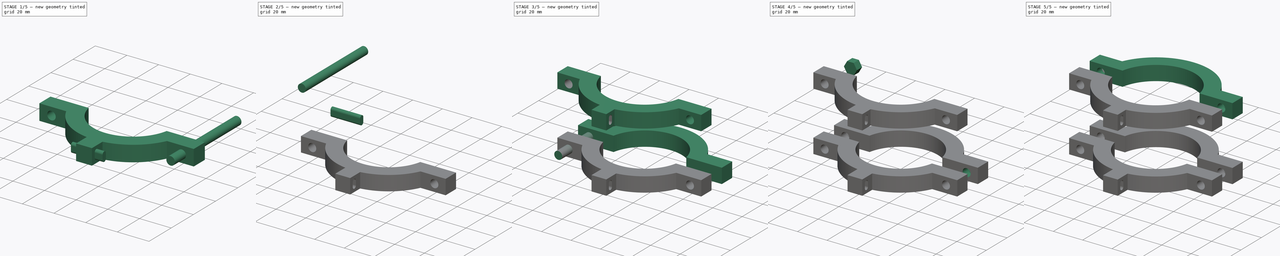
[diagram: build sequence overview — one tinted view per stage of 5, left to right]
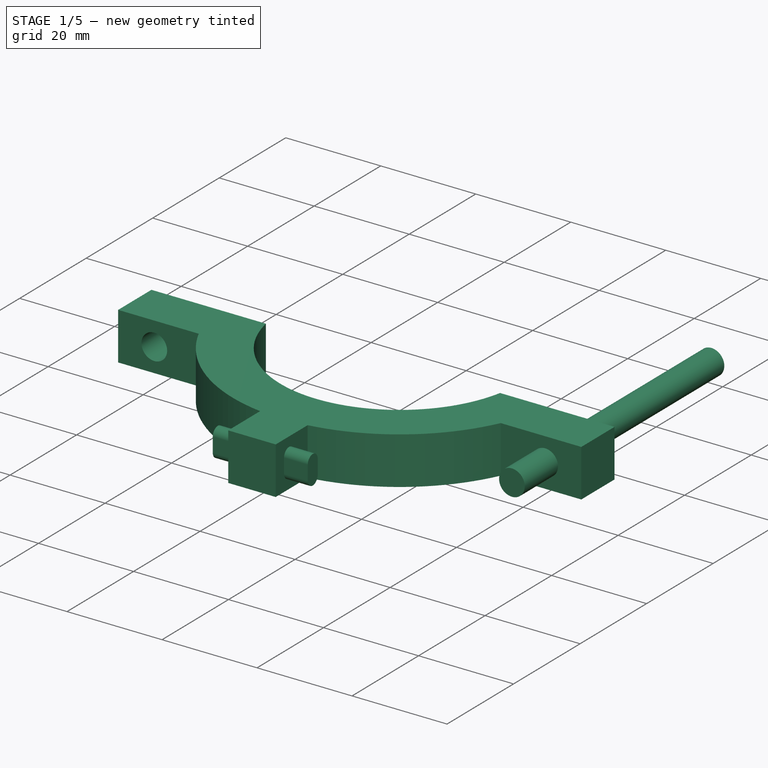
[diagram: stage 1 of 5 — iso view after this stage's code; geometry added in this stage tinted green]
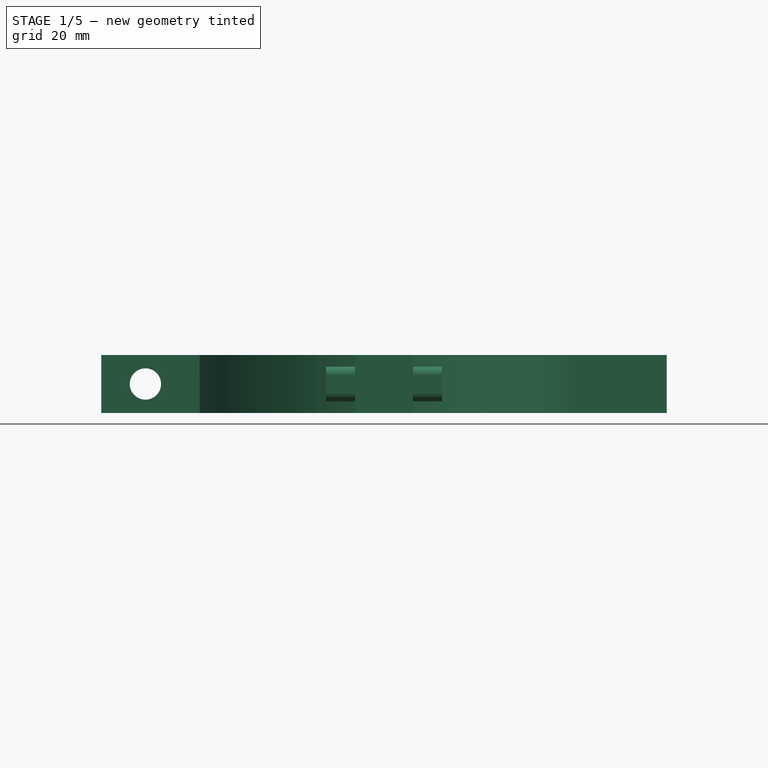
[diagram: stage 1 of 5 — front view after this stage's code; geometry added in this stage tinted green]
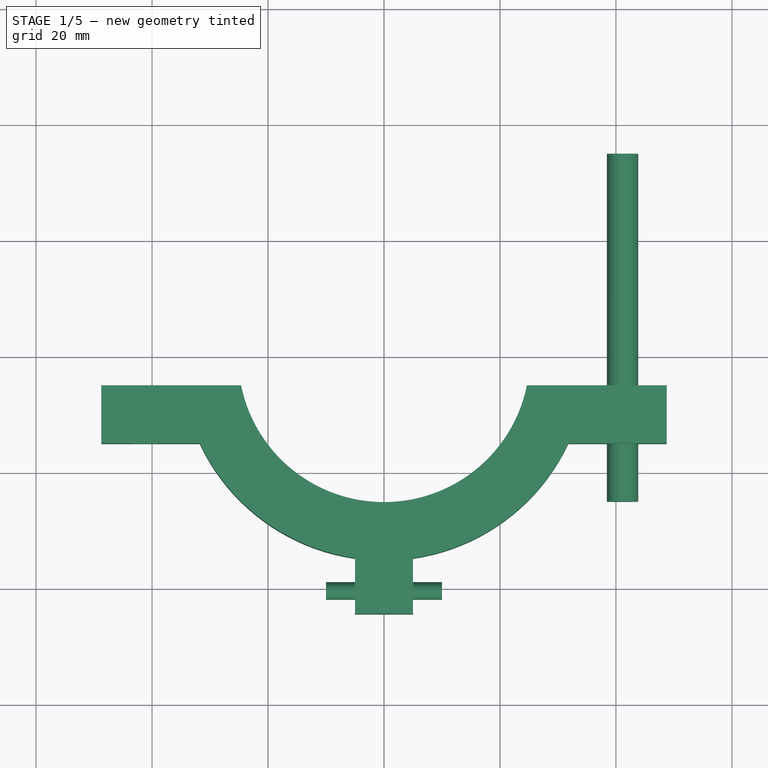
[diagram: stage 1 of 5 — top view after this stage's code; geometry added in this stage tinted green]
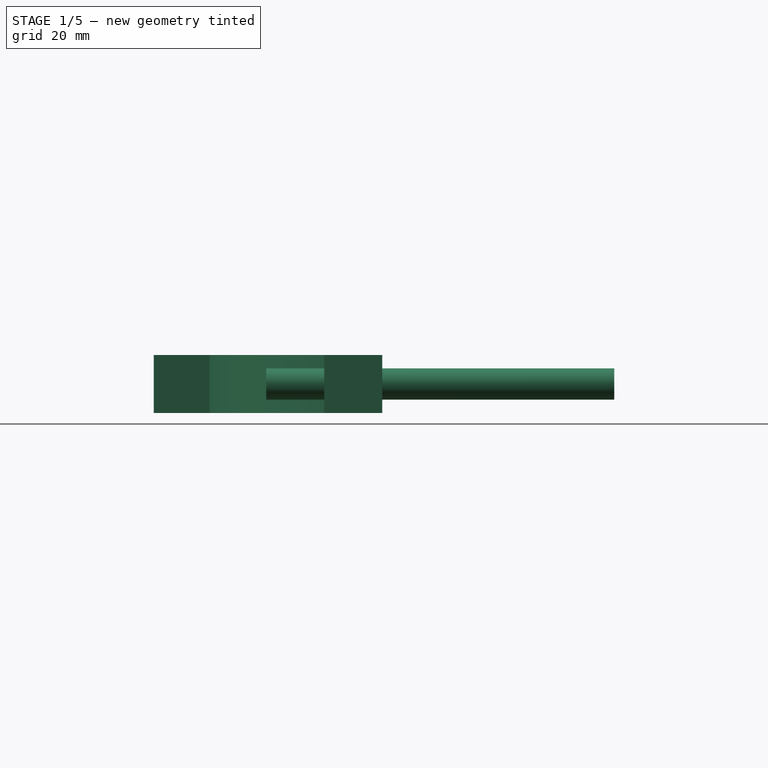
[diagram: stage 1 of 5 — right view after this stage's code; geometry added in this stage tinted green]
FCSTD DOCUMENT  (FreeCAD 0.15R4671 (Git))
Label: vacuum_holder
License: All rights reserved
LicenseURL: http://en.wikipedia.org/wiki/All_rights_reserved
objects: Part::Cut×14, Part::Cylinder×12, Sketcher::SketchObject×4, PartDesign::Pad×4, Part::RegularPolygon×4, Part::Extrusion×4, Part::Box×2, Part::MultiFuse×2, App::DocumentObjectGroup×2
note: 50 computed .brp shape members not serialized (recipe doc carries the construction recipe); baked Part::Feature solids carry a one-line shape summary decoded from their .brp

FEATURE [Sketcher::SketchObject] Sketch005  label="skt_fore_bottom_clamp"
  sketch-geometry (14):
    g0: ArcOfCircle CenterX=0 CenterY=0 CenterZ=0 NormalX=0 NormalY=0 NormalZ=1 Radius=25.15 StartAngle=3.34173 EndAngle=6.08304
    g1: ArcOfCircle CenterX=0 CenterY=0 CenterZ=0 NormalX=0 NormalY=0 NormalZ=1 Radius=35.15 StartAngle=3.58248 EndAngle=4.56966
    g2: LineSegment StartX=-5 StartY=-34.7926 StartZ=0 EndX=-5 EndY=-44.3926 EndZ=0
    g3: LineSegment StartX=-5 StartY=-44.3926 StartZ=0 EndX=5 EndY=-44.3926 EndZ=0
    g4: LineSegment StartX=5 StartY=-44.3926 StartZ=0 EndX=5 EndY=-34.7926 EndZ=0
    g5: ArcOfCircle CenterX=0 CenterY=0 CenterZ=0 NormalX=0 NormalY=0 NormalZ=1 Radius=35.15 StartAngle=4.85512 EndAngle=5.8423
    g6: LineSegment StartX=-24.648 StartY=-5 StartZ=0 EndX=-48.75 EndY=-5 EndZ=0
    g7: LineSegment StartX=-48.75 StartY=-5 StartZ=0 EndX=-48.75 EndY=-15 EndZ=0
    g8: LineSegment StartX=-48.75 StartY=-15 StartZ=0 EndX=-31.7887 EndY=-15 EndZ=0
    g9: LineSegment [constr] StartX=-24.648 StartY=-5 StartZ=0 EndX=-24.648 EndY=0 EndZ=0
    g10: LineSegment StartX=48.75 StartY=-5 StartZ=0 EndX=24.648 EndY=-5 EndZ=0
    g11: LineSegment StartX=48.75 StartY=-5 StartZ=0 EndX=48.75 EndY=-15 EndZ=0
    g12: LineSegment StartX=48.75 StartY=-15 StartZ=0 EndX=31.7887 EndY=-15 EndZ=0
    g13: LineSegment [constr] StartX=24.648 StartY=-5 StartZ=0 EndX=24.648 EndY=0 EndZ=0
  constraints (44):
    c: Coincident(g0,g-1)
    c: Coincident(g1,g-1)
    c: Radius(g0) = 25.15
    c: Vertical(g2)
    c: Coincident(g3,g2)
    c: Horizontal(g3)
    c: Coincident(g4,g3)
    c: Vertical(g4)
    c: DistanceX(g3) = 10
    c: Equal(g1,g5)
    c: Coincident(g1,g2)
    c: Coincident(g5,g4)
    c: Coincident(g1,g5)
    c: Symmetric(g1,g4,g-2)
    c: DistanceY(g2) = -9.6
    c: PointOnObject(g6,g0)
    c: Horizontal(g6)
    c: Coincident(g7,g6)
    c: Vertical(g7)
    c: Coincident(g8,g7)
    c: Horizontal(g8)
    c: Coincident(g1,g8)
    c: DistanceY(g7) = -10
    c: Radius(g1) = 35.15
    c: Coincident(g0,g6)
    c: Coincident(g9,g0)
    c: PointOnObject(g9,g-1)
    c: Vertical(g9)
    c: DistanceY(g9) = 5
    c: DistanceX(g-1,g6) = -48.75
    c: Horizontal(g10)
    c: Vertical(g11)
    c: Coincident(g12,g11)
    c: Horizontal(g12)
    c: Coincident(g0,g10)
    c: Coincident(g5,g12)
    c: Coincident(g13,g0)
    c: PointOnObject(g13,g-1)
    c: Vertical(g13)
    c: Equal(g13,g9)
    c: Coincident(g11,g10)
    c: Equal(g11,g7)
    c: Symmetric(g0,g0,g-2)
    c: Symmetric(g10,g6,g-2)
FEATURE [Sketcher::SketchObject] Sketch006  label="skt_rear_bottom_clamp"
  Placement = pos=(0,0,0) rot=(0,0,1;3.14159rad)
  sketch-geometry (10):
    g0: ArcOfCircle CenterX=0 CenterY=0 CenterZ=0 NormalX=0 NormalY=0 NormalZ=1 Radius=25.15 StartAngle=3.34173 EndAngle=6.08304
    g1: LineSegment StartX=-24.648 StartY=-5 StartZ=0 EndX=-48.75 EndY=-5 EndZ=0
    g2: LineSegment StartX=-48.75 StartY=-5 StartZ=0 EndX=-48.75 EndY=-15 EndZ=0
    g3: LineSegment StartX=-48.75 StartY=-15 StartZ=0 EndX=-31.7887 EndY=-15 EndZ=0
    g4: LineSegment [constr] StartX=-24.648 StartY=-5 StartZ=0 EndX=-24.648 EndY=0 EndZ=0
    g5: LineSegment StartX=48.75 StartY=-5 StartZ=0 EndX=24.648 EndY=-5 EndZ=0
    g6: LineSegment StartX=48.75 StartY=-5 StartZ=0 EndX=48.75 EndY=-15 EndZ=0
    g7: LineSegment StartX=48.75 StartY=-15 StartZ=0 EndX=31.7887 EndY=-15 EndZ=0
    g8: LineSegment [constr] StartX=24.648 StartY=-5 StartZ=0 EndX=24.648 EndY=0 EndZ=0
    g9: ArcOfCircle CenterX=0 CenterY=0 CenterZ=0 NormalX=0 NormalY=0 NormalZ=1 Radius=35.15 StartAngle=3.58248 EndAngle=5.8423
  constraints (32):
    c: Coincident(g0,g-1)
    c: Radius(g0) = 25.15
    c: PointOnObject(g1,g0)
    c: Horizontal(g1)
    c: Coincident(g2,g1)
    c: Vertical(g2)
    c: Coincident(g3,g2)
    c: Horizontal(g3)
    c: DistanceY(g2) = -10
    c: Coincident(g0,g1)
    c: Coincident(g4,g0)
    c: PointOnObject(g4,g-1)
    c: Vertical(g4)
    c: DistanceY(g4) = 5
    c: DistanceX(g-1,g1) = -48.75
    c: Horizontal(g5)
    c: Vertical(g6)
    c: Coincident(g7,g6)
    c: Horizontal(g7)
    c: Coincident(g0,g5)
    c: Coincident(g8,g0)
    c: PointOnObject(g8,g-1)
    c: Vertical(g8)
    c: Equal(g8,g4)
    c: Coincident(g6,g5)
    c: Equal(g6,g2)
    c: Symmetric(g0,g0,g-2)
    c: Symmetric(g5,g1,g-2)
    c: Coincident(g9,g-1)
    c: Coincident(g9,g7)
    c: Coincident(g9,g3)
    c: Radius(g9) = 35.15
FEATURE [PartDesign::Pad] Pad005  label="base_fore_bottom_clamp"
  Length = 10
  Length2 = 100
  Sketch = -> Sketch005
  Type = 0
FEATURE [Part::Cylinder] Cylinder001  label="cyl_bottom_left"
  Angle = 360
  Height = 60
  Placement = pos=(-41.1442,-25,5) rot=(-1,0,0;1.5708rad)
  Radius = 2.7
FEATURE [Part::Cylinder] Cylinder003  label="cyl_bottom_right"
  Angle = 360
  Height = 60
  Placement = pos=(41.1442,-25,5) rot=(-1,0,0;1.5708rad)
  Radius = 2.7
FEATURE [Part::Cut] Cut002  label="fore_bottom_clamp_left_hole"
  Base = -> Pad005
  Tool = -> Cylinder001
FEATURE [Part::Box] Box001  label="Cube001"
  Height = 20
  Length = 3
  Placement = pos=(-1.5,-1.5,0) rot=(0,0,1;0rad)
  Width = 3
FEATURE [Part::Cylinder] Cylinder010  label="Cylinder012"
  Angle = 360
  Height = 20
  Placement = pos=(0,-1.5,0) rot=(0,0,1;0rad)
  Radius = 1.5
FEATURE [Part::Cylinder] Cylinder011  label="Cylinder013"
  Angle = 360
  Height = 20
  Placement = pos=(0,1.5,0) rot=(0,0,1;0rad)
  Radius = 1.5
FEATURE [Part::MultiFuse] Fusion001  label="hueco_soporte001"
  Placement = pos=(-10,-40.3982,5) rot=(0.57735,0.57735,0.57735;2.0944rad)
  Shapes = -> [Cylinder011,Box001,Cylinder010]
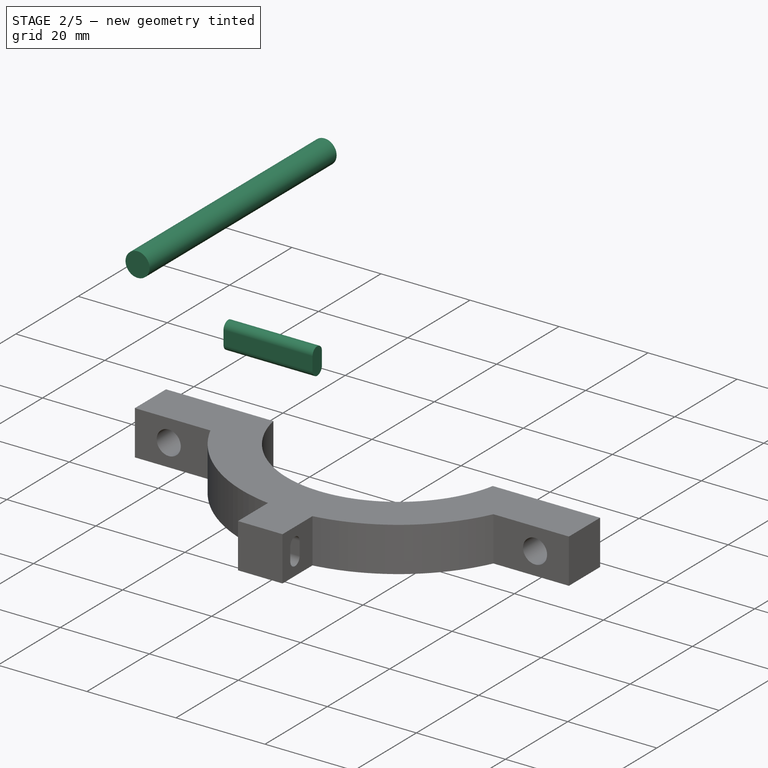
[diagram: stage 2 of 5 — iso view after this stage's code; geometry added in this stage tinted green]
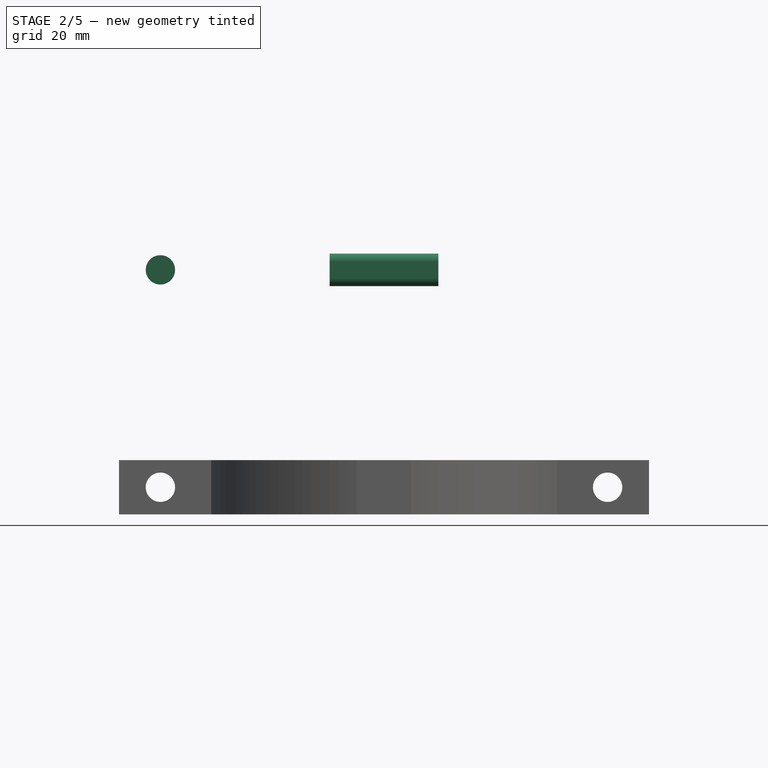
[diagram: stage 2 of 5 — front view after this stage's code; geometry added in this stage tinted green]
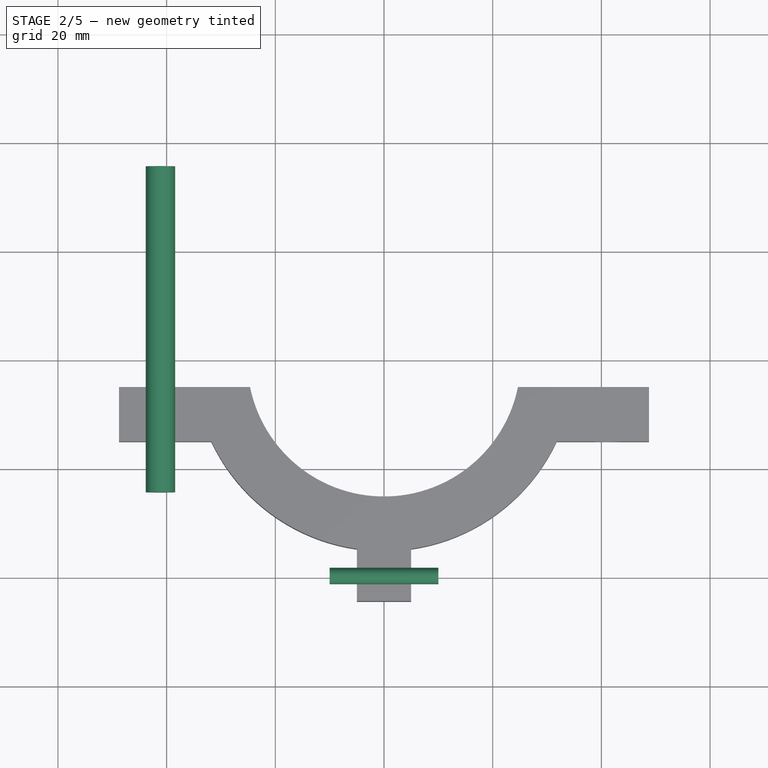
[diagram: stage 2 of 5 — top view after this stage's code; geometry added in this stage tinted green]
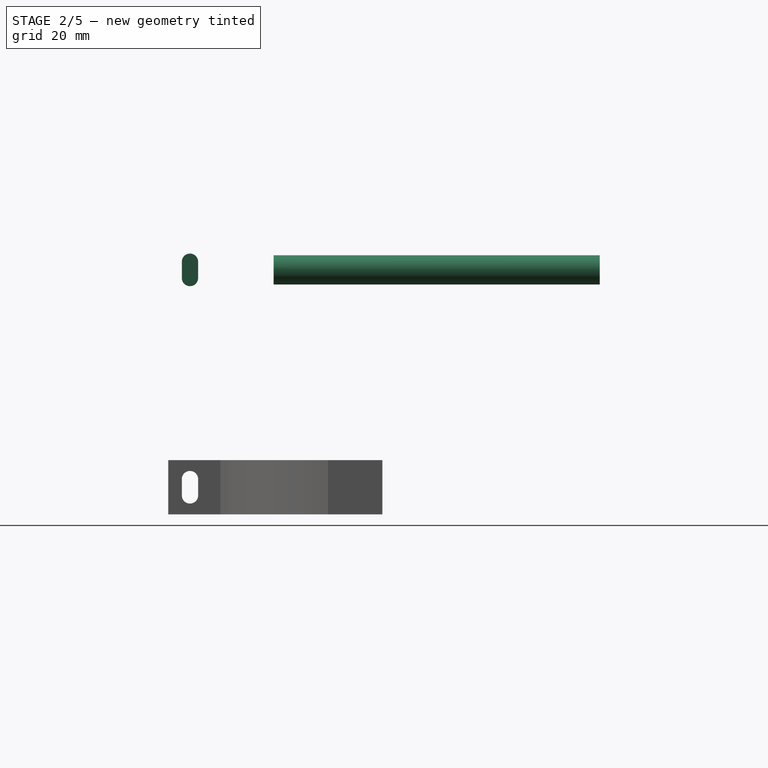
[diagram: stage 2 of 5 — right view after this stage's code; geometry added in this stage tinted green]
FEATURE [Part::Cylinder] Cylinder  label="cyl_top_left"
  Angle = 360
  Height = 60
  Placement = pos=(-41.1442,-25,45) rot=(-1,0,0;1.5708rad)
  Radius = 2.7
FEATURE [Part::Cut] Cut006  label="fore_bottom_clamp_side_holes"
  Base = -> Cut002
  Tool = -> Cylinder003
FEATURE [Part::Box] Box  label="Cube"
  Height = 20
  Length = 3
  Placement = pos=(-1.5,-1.5,0) rot=(0,0,1;0rad)
  Width = 3
FEATURE [Part::Cylinder] Cylinder008  label="Cylinder"
  Angle = 360
  Height = 20
  Placement = pos=(0,-1.5,0) rot=(0,0,1;0rad)
  Radius = 1.5
FEATURE [Part::Cylinder] Cylinder009  label="Cylinder001"
  Angle = 360
  Height = 20
  Placement = pos=(0,1.5,0) rot=(0,0,1;0rad)
  Radius = 1.5
FEATURE [Part::MultiFuse] Fusion  label="hueco_soporte"
  Placement = pos=(-10,-40.3982,45) rot=(0.57735,0.57735,0.57735;2.0944rad)
  Shapes = -> [Cylinder009,Box,Cylinder008]
FEATURE [App::DocumentObjectGroup] Group  label="top_clamp"
  Group = -> [Cut009,Cut012]
FEATURE [Part::Cut] Cut013  label="fore_bottom_clamp_all_holes"
  Base = -> Cut006
  Tool = -> Fusion001
FEATURE [App::DocumentObjectGroup] Group001  label="bottom_clamp"
  Group = -> [Cut011,Cut013]
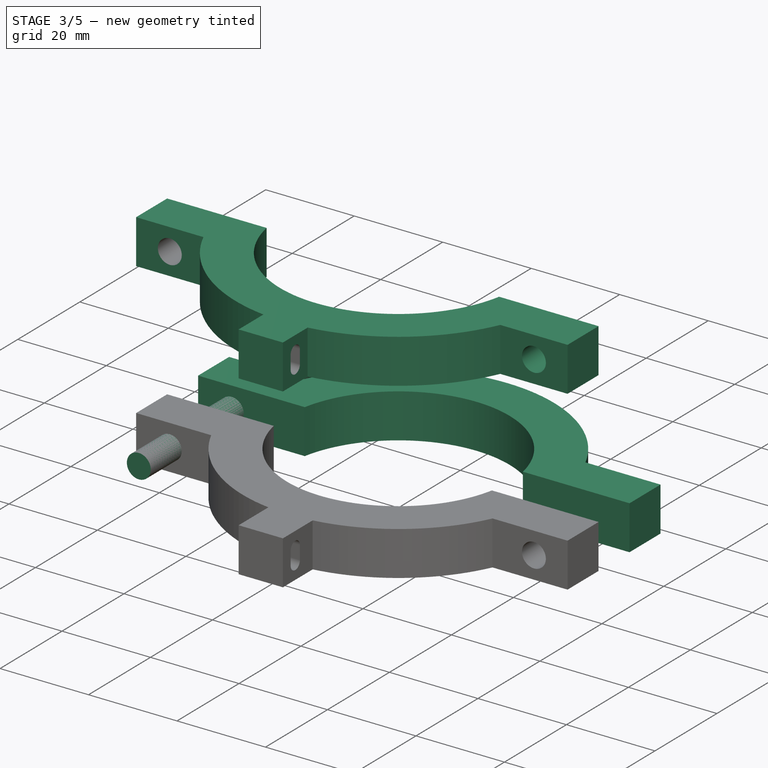
[diagram: stage 3 of 5 — iso view after this stage's code; geometry added in this stage tinted green]
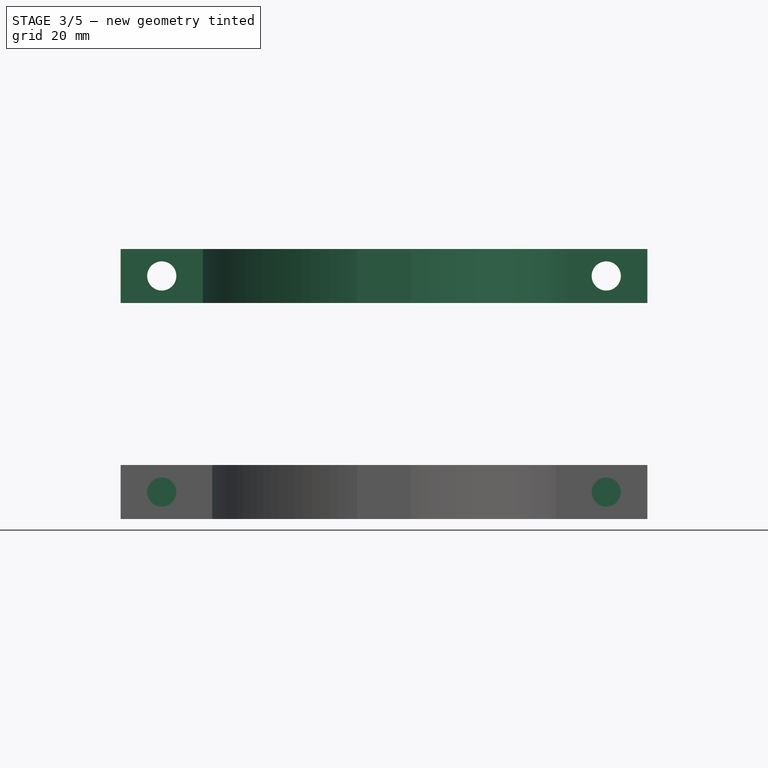
[diagram: stage 3 of 5 — front view after this stage's code; geometry added in this stage tinted green]
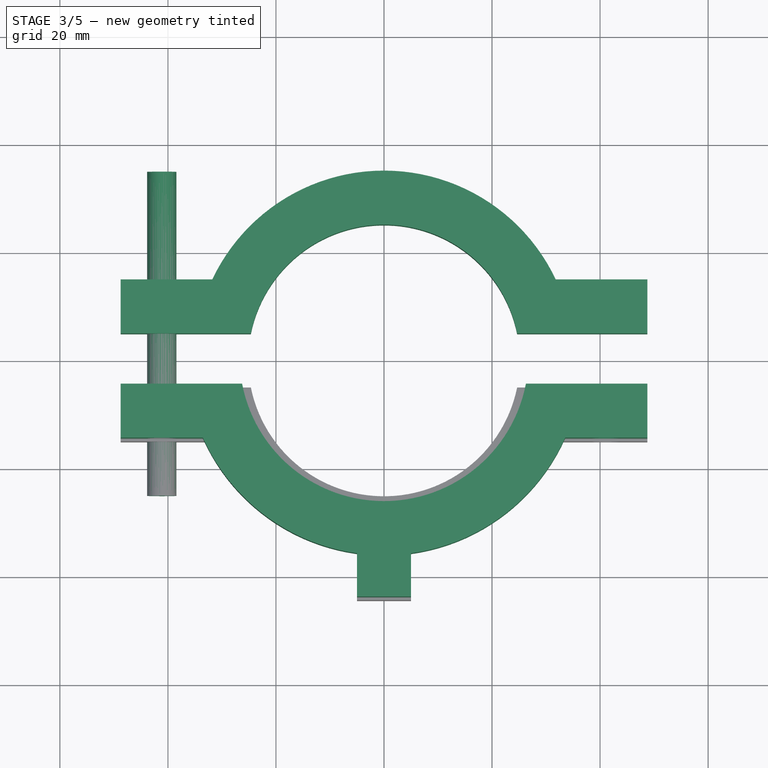
[diagram: stage 3 of 5 — top view after this stage's code; geometry added in this stage tinted green]
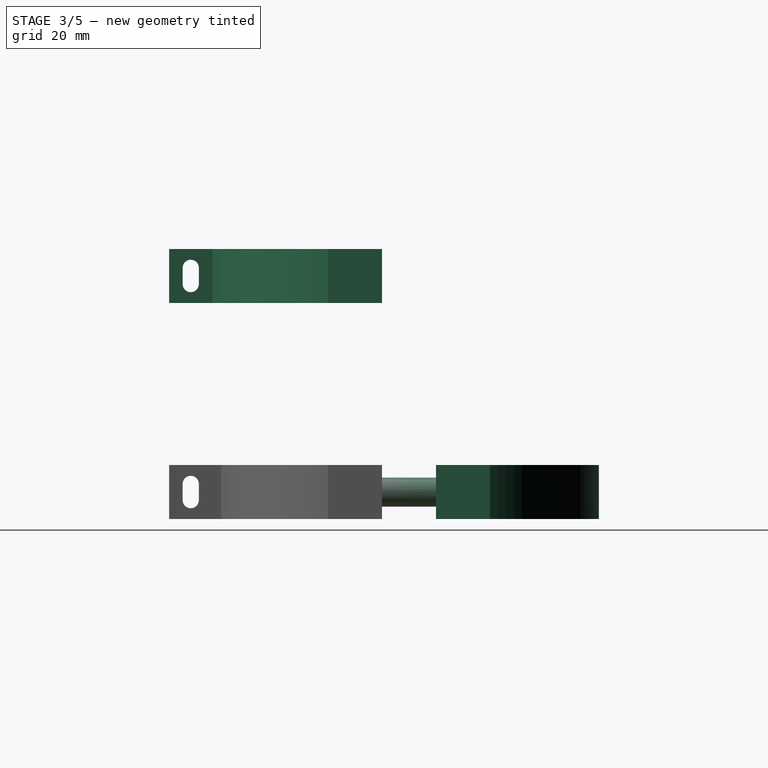
[diagram: stage 3 of 5 — right view after this stage's code; geometry added in this stage tinted green]
FEATURE [Sketcher::SketchObject] Sketch  label="skt_fore_top_clamp"
  Placement = pos=(0,0,40) rot=(0,0,1;0rad)
  sketch-geometry (14):
    g0: ArcOfCircle CenterX=0 CenterY=0 CenterZ=0 NormalX=0 NormalY=0 NormalZ=1 Radius=26.74 StartAngle=3.32969 EndAngle=6.09509
    g1: ArcOfCircle CenterX=0 CenterY=0 CenterZ=0 NormalX=0 NormalY=0 NormalZ=1 Radius=36.74 StartAngle=3.56216 EndAngle=4.57587
    g2: LineSegment StartX=-5 StartY=-36.3982 StartZ=0 EndX=-5 EndY=-44.3982 EndZ=0
    g3: LineSegment StartX=-5 StartY=-44.3982 StartZ=0 EndX=5 EndY=-44.3982 EndZ=0
    g4: LineSegment StartX=5 StartY=-44.3982 StartZ=0 EndX=5 EndY=-36.3982 EndZ=0
    g5: ArcOfCircle CenterX=0 CenterY=0 CenterZ=0 NormalX=0 NormalY=0 NormalZ=1 Radius=36.74 StartAngle=4.8489 EndAngle=5.86262
    g6: LineSegment StartX=-26.2684 StartY=-5 StartZ=0 EndX=-48.75 EndY=-5 EndZ=0
    g7: LineSegment StartX=-48.75 StartY=-5 StartZ=0 EndX=-48.75 EndY=-15 EndZ=0
    g8: LineSegment StartX=-48.75 StartY=-15 StartZ=0 EndX=-33.5384 EndY=-15 EndZ=0
    g9: LineSegment [constr] StartX=-26.2684 StartY=-5 StartZ=0 EndX=-26.2684 EndY=0 EndZ=0
    g10: LineSegment StartX=48.75 StartY=-5 StartZ=0 EndX=26.2684 EndY=-5 EndZ=0
    g11: LineSegment StartX=48.75 StartY=-5 StartZ=0 EndX=48.75 EndY=-15 EndZ=0
    g12: LineSegment StartX=48.75 StartY=-15 StartZ=0 EndX=33.5384 EndY=-15 EndZ=0
    g13: LineSegment [constr] StartX=26.2684 StartY=-5 StartZ=0 EndX=26.2684 EndY=0 EndZ=0
  constraints (44):
    c: Coincident(g0,g-1)
    c: Coincident(g1,g-1)
    c: Radius(g0) = 26.74
    c: Vertical(g2)
    c: Coincident(g3,g2)
    c: Horizontal(g3)
    c: Coincident(g4,g3)
    c: Vertical(g4)
    c: DistanceX(g3) = 10
    c: Equal(g1,g5)
    c: Coincident(g1,g2)
    c: Coincident(g5,g4)
    c: Coincident(g1,g5)
    c: Symmetric(g1,g4,g-2)
    c: DistanceY(g2) = -8
    c: PointOnObject(g6,g0)
    c: Horizontal(g6)
    c: Coincident(g7,g6)
    c: Vertical(g7)
    c: Coincident(g8,g7)
    c: Horizontal(g8)
    c: Coincident(g1,g8)
    c: DistanceY(g7) = -10
    c: Radius(g1) = 36.74
    c: Coincident(g0,g6)
    c: Coincident(g9,g0)
    c: PointOnObject(g9,g-1)
    c: Vertical(g9)
    c: DistanceY(g9) = 5
    c: DistanceX(g-1,g6) = -48.75
    c: Horizontal(g10)
    c: Vertical(g11)
    c: Coincident(g12,g11)
    c: Horizontal(g12)
    c: Coincident(g0,g10)
    c: Coincident(g5,g12)
    c: Coincident(g13,g0)
    c: PointOnObject(g13,g-1)
    c: Vertical(g13)
    c: Equal(g13,g9)
    c: Coincident(g11,g10)
    c: Equal(g11,g7)
    c: Symmetric(g0,g0,g-2)
    c: Symmetric(g10,g6,g-2)
FEATURE [PartDesign::Pad] Pad  label="base_fore_top_clamp"
  Length = 10
  Length2 = 100
  Placement = pos=(0,0,40) rot=(0,0,1;0rad)
  Sketch = -> Sketch
  Type = 0
FEATURE [PartDesign::Pad] Pad006  label="base_rear_bottom_clamp"
  Length = 10
  Length2 = 100
  Placement = pos=(0,0,0) rot=(0,0,1;3.14159rad)
  Sketch = -> Sketch006
  Type = 0
FEATURE [Part::Cylinder] Cylinder002  label="cyl_top_right"
  Angle = 360
  Height = 60
  Placement = pos=(41.1442,-25,45) rot=(-1,0,0;1.5708rad)
  Radius = 2.7
FEATURE [Part::Cylinder] Cylinder005  label="cyl_bottom_left001"
  Angle = 360
  Height = 60
  Placement = pos=(-41.1442,-25,5) rot=(-1,0,0;1.5708rad)
  Radius = 2.7
FEATURE [Part::Cut] Cut  label="fore_top_clamp_left_hole"
  Base = -> Pad
  Tool = -> Cylinder
FEATURE [Part::Cut] Cut004  label="fore_top_clamp_side_holes"
  Base = -> Cut
  Tool = -> Cylinder002
FEATURE [Part::RegularPolygon] RegularPolygon003  label="base_nut003"
  Circumradius = 4.42
  Polygon = 6
FEATURE [Part::Extrusion] Extrude003  label="bottom_left_nut"
  Base = -> RegularPolygon003
  Dir = (0,0,5)
  Placement = pos=(-41.1442,15,5) rot=(1,0,0;1.5708rad)
  Solid = true
FEATURE [Part::Cut] Cut012  label="fore_top_clamp_all_holes"
  Base = -> Cut004
  Tool = -> Fusion
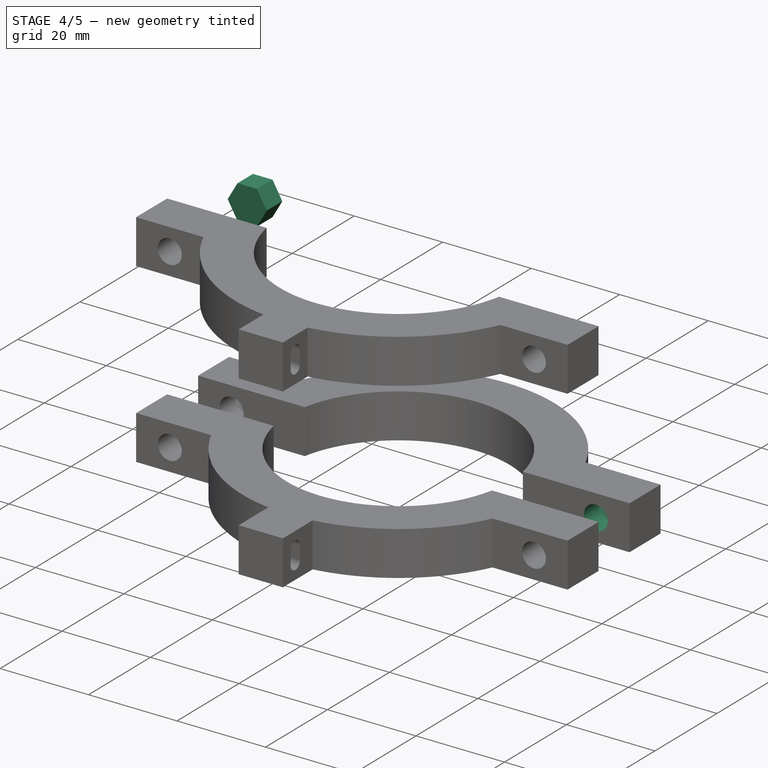
[diagram: stage 4 of 5 — iso view after this stage's code; geometry added in this stage tinted green]
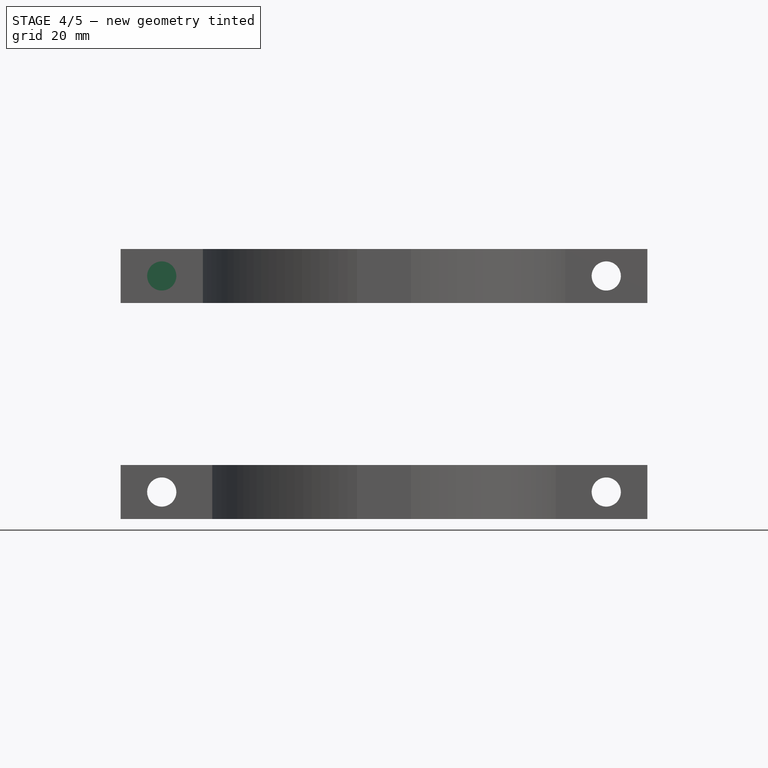
[diagram: stage 4 of 5 — front view after this stage's code; geometry added in this stage tinted green]
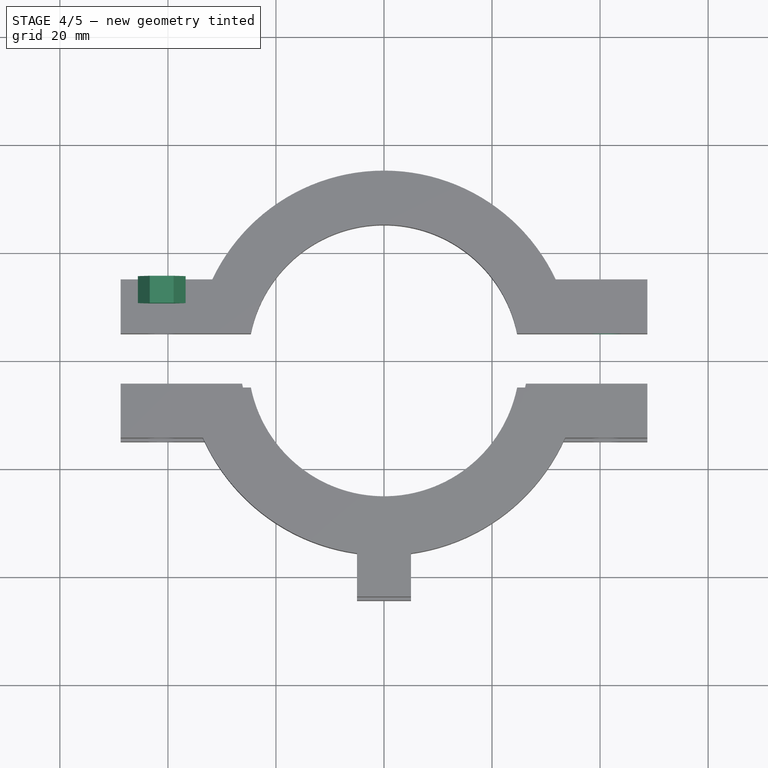
[diagram: stage 4 of 5 — top view after this stage's code; geometry added in this stage tinted green]
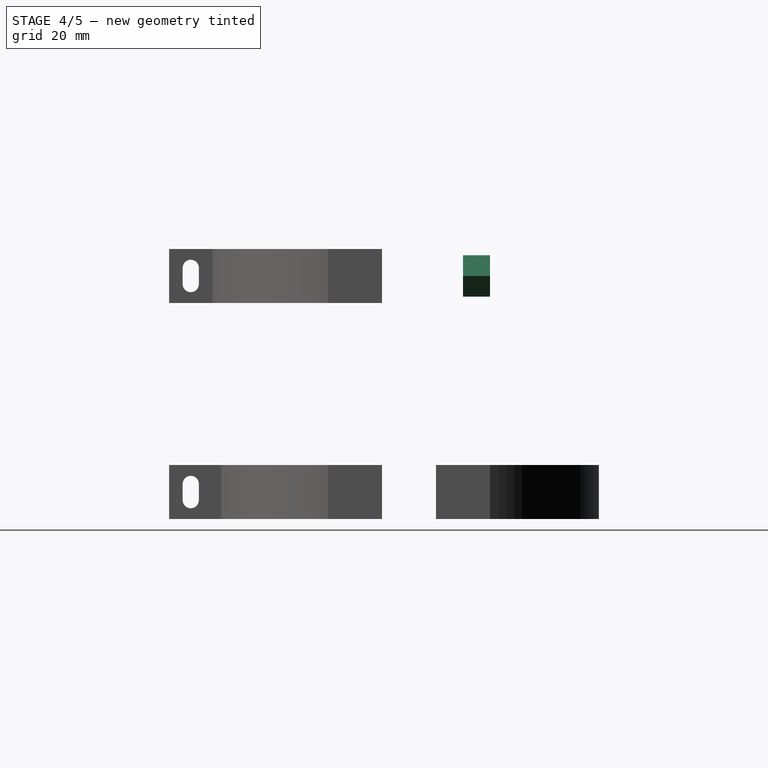
[diagram: stage 4 of 5 — right view after this stage's code; geometry added in this stage tinted green]
FEATURE [Part::Cylinder] Cylinder007  label="cyl_bottom_right001"
  Angle = 360
  Height = 60
  Placement = pos=(41.1442,-25,5) rot=(-1,0,0;1.5708rad)
  Radius = 2.7
FEATURE [Part::Cut] Cut003  label="fore_bottom_clamp_left_hole001"
  Base = -> Pad006
  Tool = -> Cylinder005
FEATURE [Part::Cut] Cut007  label="rear_bottom_clamp_side_holes"
  Base = -> Cut003
  Tool = -> Cylinder007
FEATURE [Part::RegularPolygon] RegularPolygon  label="base_nut"
  Circumradius = 4.42
  Polygon = 6
FEATURE [Part::Extrusion] Extrude  label="bottom_right_nut"
  Base = -> RegularPolygon
  Dir = (0,0,5)
  Placement = pos=(41.1442,15,5) rot=(1,0,0;1.5708rad)
  Solid = true
FEATURE [Part::RegularPolygon] RegularPolygon002  label="base_nut002"
  Circumradius = 4.42
  Polygon = 6
FEATURE [Part::Extrusion] Extrude002  label="top_left_nut"
  Base = -> RegularPolygon002
  Dir = (0,0,5)
  Placement = pos=(-41.1442,15,45) rot=(1,0,0;1.5708rad)
  Solid = true
FEATURE [Part::Cut] Cut010  label="rear_bottom_clamp_left_nut_hole"
  Base = -> Cut007
  Tool = -> Extrude003
FEATURE [Part::Cut] Cut011  label="rear_bottom_clamp_nut_holes"
  Base = -> Cut010
  Tool = -> Extrude
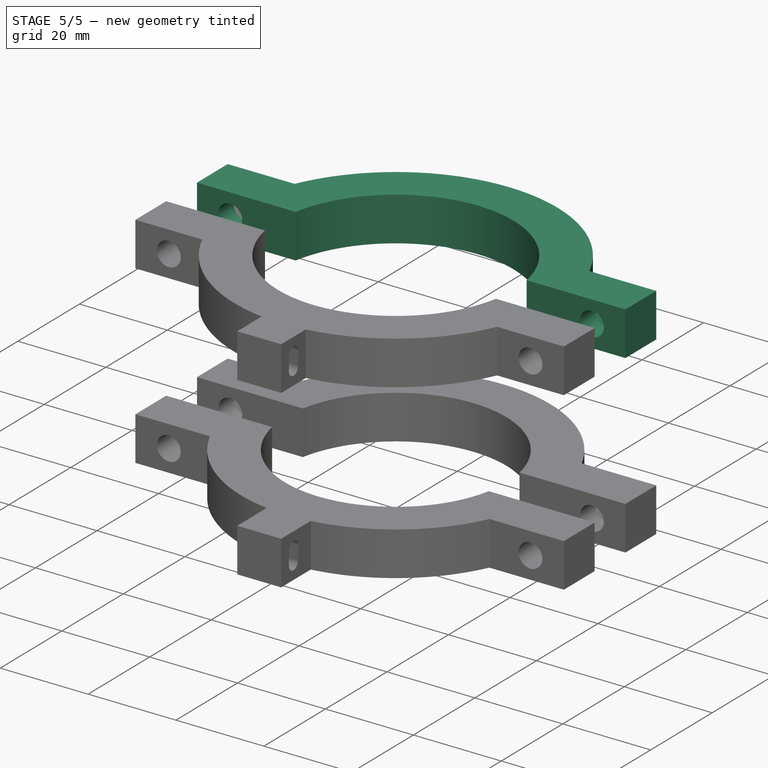
[diagram: stage 5 of 5 — iso view after this stage's code; geometry added in this stage tinted green]
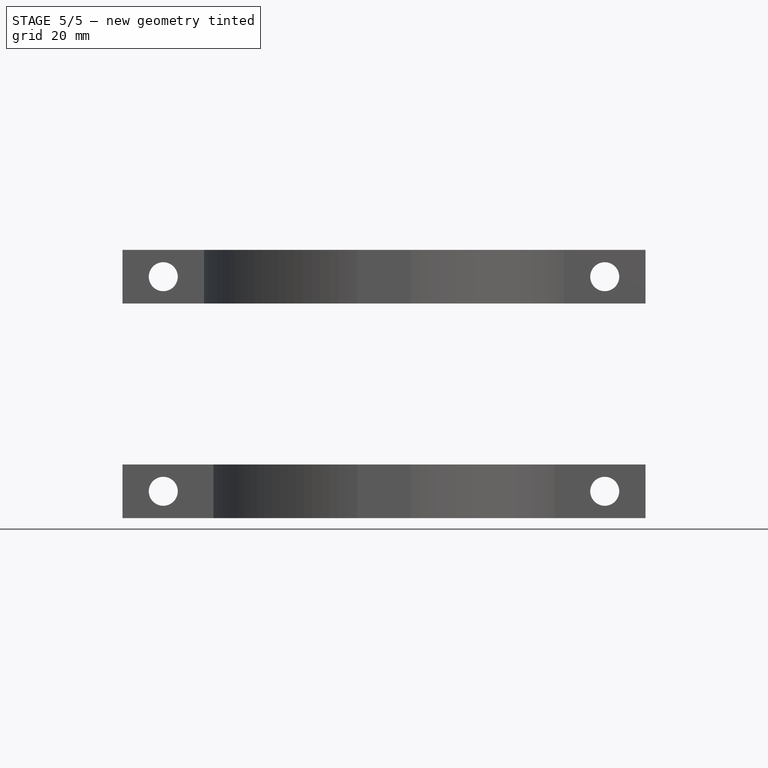
[diagram: stage 5 of 5 — front view after this stage's code; geometry added in this stage tinted green]
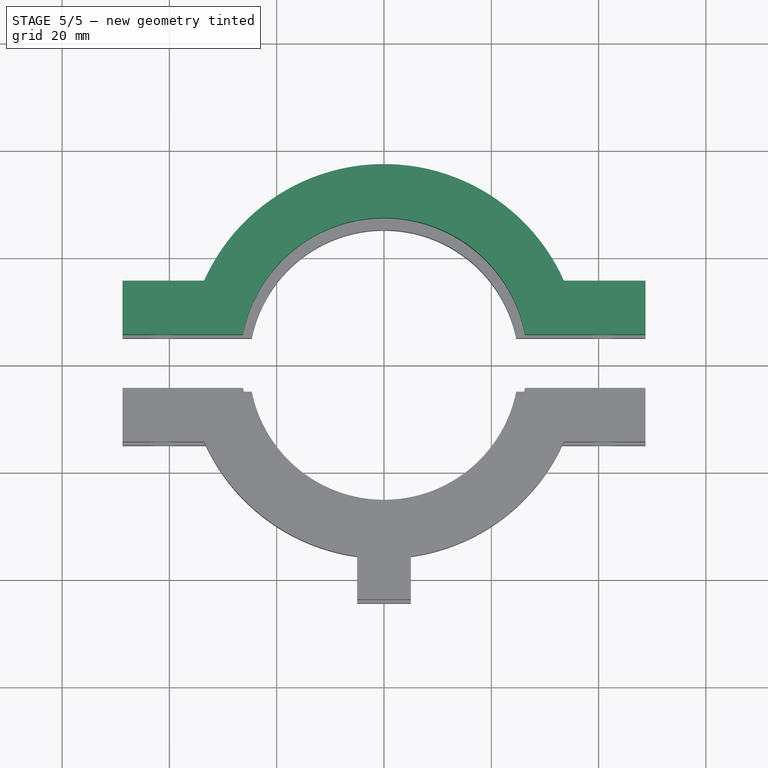
[diagram: stage 5 of 5 — top view after this stage's code; geometry added in this stage tinted green]
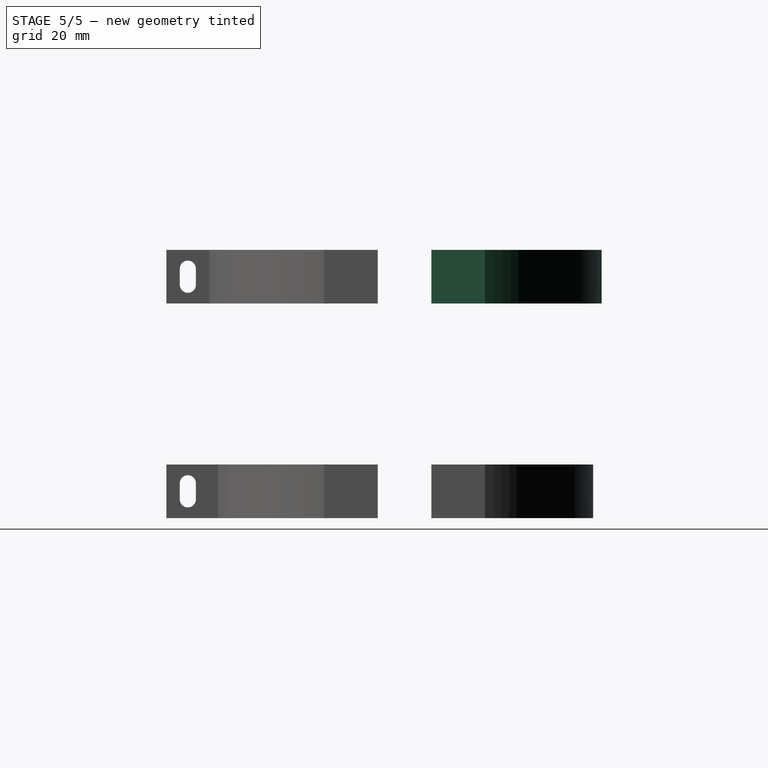
[diagram: stage 5 of 5 — right view after this stage's code; geometry added in this stage tinted green]
FEATURE [Sketcher::SketchObject] Sketch004  label="skt_rear_top_clamp"
  Placement = pos=(0,0,40) rot=(0,0,1;3.14159rad)
  sketch-geometry (10):
    g0: ArcOfCircle CenterX=0 CenterY=0 CenterZ=0 NormalX=0 NormalY=0 NormalZ=1 Radius=26.74 StartAngle=3.32969 EndAngle=6.09509
    g1: LineSegment StartX=-26.2684 StartY=-5 StartZ=0 EndX=-48.75 EndY=-5 EndZ=0
    g2: LineSegment StartX=-48.75 StartY=-5 StartZ=0 EndX=-48.75 EndY=-15 EndZ=0
    g3: LineSegment StartX=-48.75 StartY=-15 StartZ=0 EndX=-33.5384 EndY=-15 EndZ=0
    g4: LineSegment [constr] StartX=-26.2684 StartY=-5 StartZ=0 EndX=-26.2684 EndY=0 EndZ=0
    g5: LineSegment StartX=48.75 StartY=-5 StartZ=0 EndX=26.2684 EndY=-5 EndZ=0
    g6: LineSegment StartX=48.75 StartY=-5 StartZ=0 EndX=48.75 EndY=-15 EndZ=0
    g7: LineSegment StartX=48.75 StartY=-15 StartZ=0 EndX=33.5384 EndY=-15 EndZ=0
    g8: LineSegment [constr] StartX=26.2684 StartY=-5 StartZ=0 EndX=26.2684 EndY=0 EndZ=0
    g9: ArcOfCircle CenterX=0 CenterY=0 CenterZ=0 NormalX=0 NormalY=0 NormalZ=1 Radius=36.74 StartAngle=3.56216 EndAngle=5.86262
  constraints (32):
    c: Coincident(g0,g-1)
    c: Radius(g0) = 26.74
    c: PointOnObject(g1,g0)
    c: Horizontal(g1)
    c: Coincident(g2,g1)
    c: Vertical(g2)
    c: Coincident(g3,g2)
    c: Horizontal(g3)
    c: DistanceY(g2) = -10
    c: Coincident(g0,g1)
    c: Coincident(g4,g0)
    c: PointOnObject(g4,g-1)
    c: Vertical(g4)
    c: DistanceY(g4) = 5
    c: DistanceX(g-1,g1) = -48.75
    c: Horizontal(g5)
    c: Vertical(g6)
    c: Coincident(g7,g6)
    c: Horizontal(g7)
    c: Coincident(g0,g5)
    c: Coincident(g8,g0)
    c: PointOnObject(g8,g-1)
    c: Vertical(g8)
    c: Equal(g8,g4)
    c: Coincident(g6,g5)
    c: Equal(g6,g2)
    c: Symmetric(g0,g0,g-2)
    c: Symmetric(g5,g1,g-2)
    c: Coincident(g9,g-1)
    c: Coincident(g9,g7)
    c: Coincident(g9,g3)
    c: Radius(g9) = 36.74
FEATURE [PartDesign::Pad] Pad004  label="base_rear_top_clamp"
  Length = 10
  Length2 = 100
  Placement = pos=(0,0,40) rot=(0,0,1;3.14159rad)
  Sketch = -> Sketch004
  Type = 0
FEATURE [Part::Cylinder] Cylinder004  label="cyl_top_left001"
  Angle = 360
  Height = 60
  Placement = pos=(-41.1442,-25,45) rot=(-1,0,0;1.5708rad)
  Radius = 2.7
FEATURE [Part::Cylinder] Cylinder006  label="cyl_top_right001"
  Angle = 360
  Height = 60
  Placement = pos=(41.1442,-25,45) rot=(-1,0,0;1.5708rad)
  Radius = 2.7
FEATURE [Part::Cut] Cut001  label="rear_top_clamp_left_hole"
  Base = -> Pad004
  Tool = -> Cylinder004
FEATURE [Part::Cut] Cut005  label="rear_top_clamp_side_holes"
  Base = -> Cut001
  Tool = -> Cylinder006
FEATURE [Part::RegularPolygon] RegularPolygon001  label="base_nut001"
  Circumradius = 4.42
  Polygon = 6
FEATURE [Part::Extrusion] Extrude001  label="top_right_nut"
  Base = -> RegularPolygon001
  Dir = (0,0,5)
  Placement = pos=(41.1442,15,45) rot=(1,0,0;1.5708rad)
  Solid = true
FEATURE [Part::Cut] Cut008  label="rear_top_clamp_left_nut_hole"
  Base = -> Cut005
  Tool = -> Extrude002
FEATURE [Part::Cut] Cut009  label="rear_top_clamp_nut_holes"
  Base = -> Cut008
  Tool = -> Extrude001
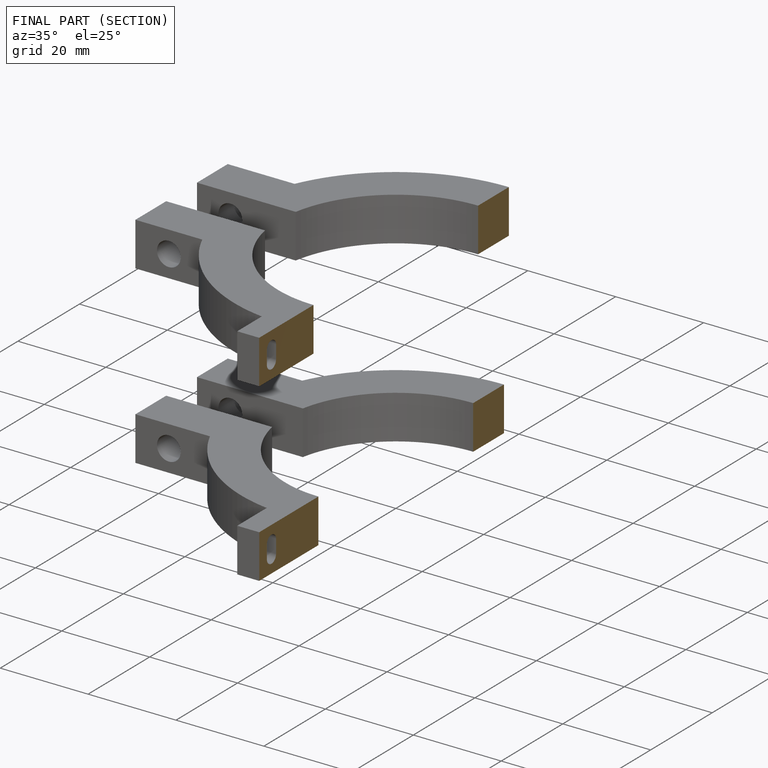
[diagram: finished part — half-section view (interior)]
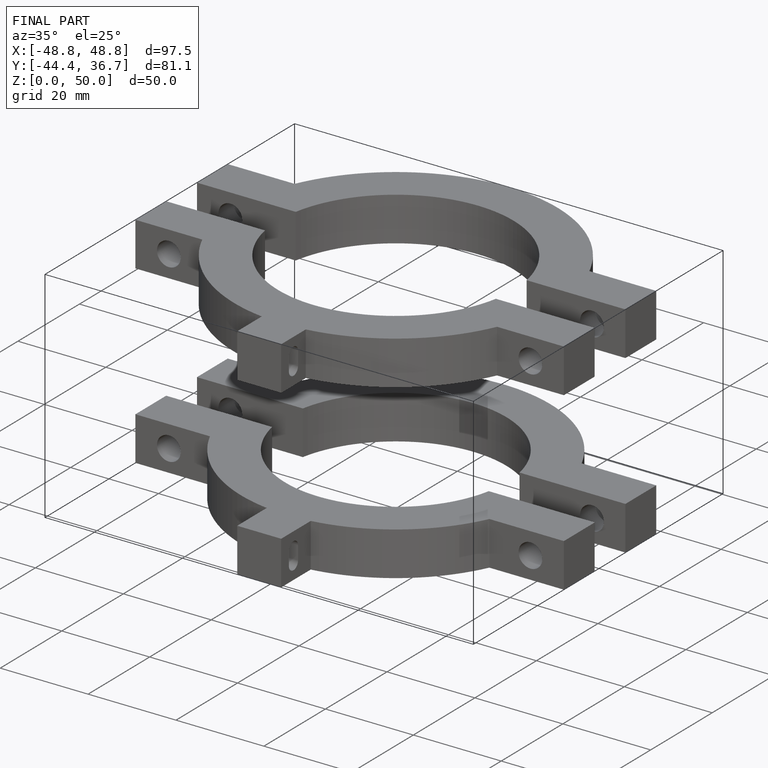
[diagram: finished part — iso view with bounding-box wireframe]
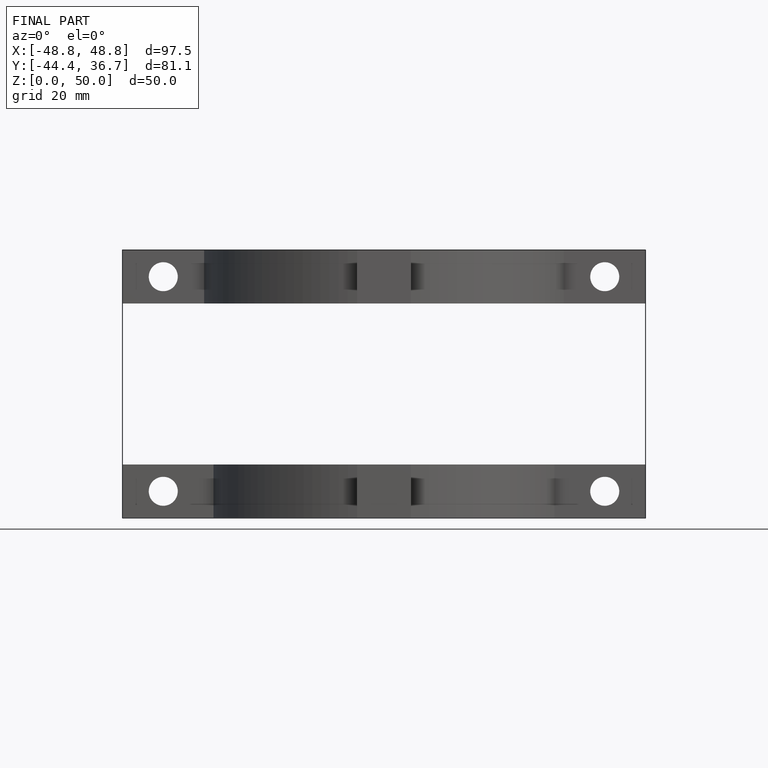
[diagram: finished part — front view with bounding-box wireframe]
